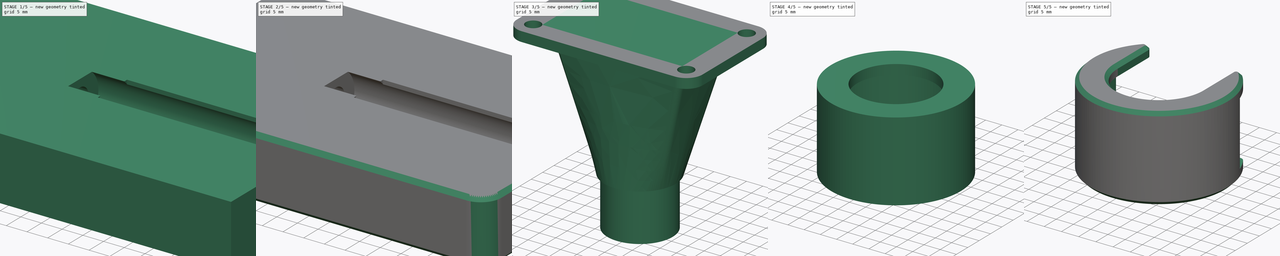
[diagram: build sequence overview — one tinted view per stage of 5, left to right]
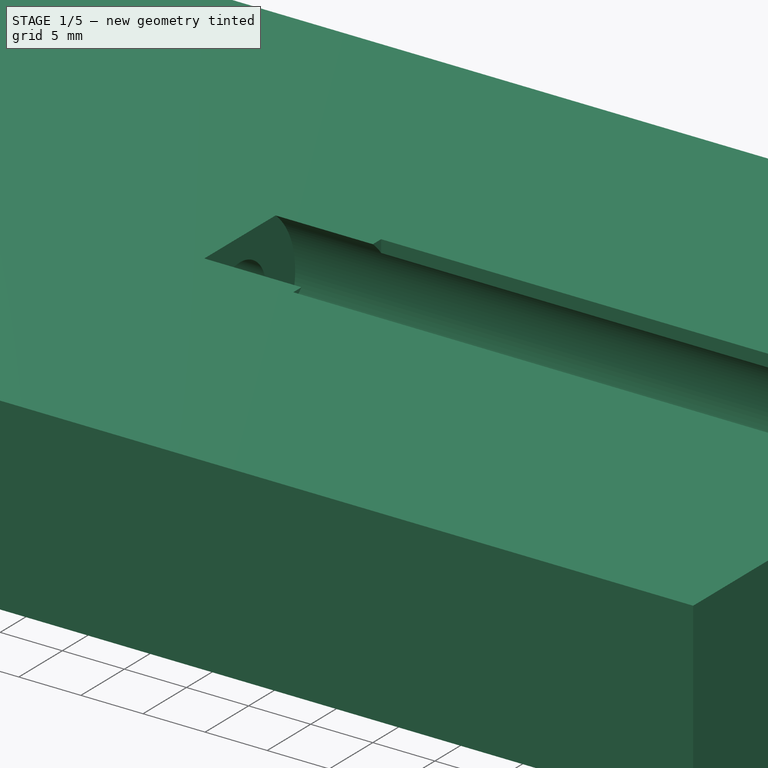
[diagram: stage 1 of 5 — iso view after this stage's code; geometry added in this stage tinted green]
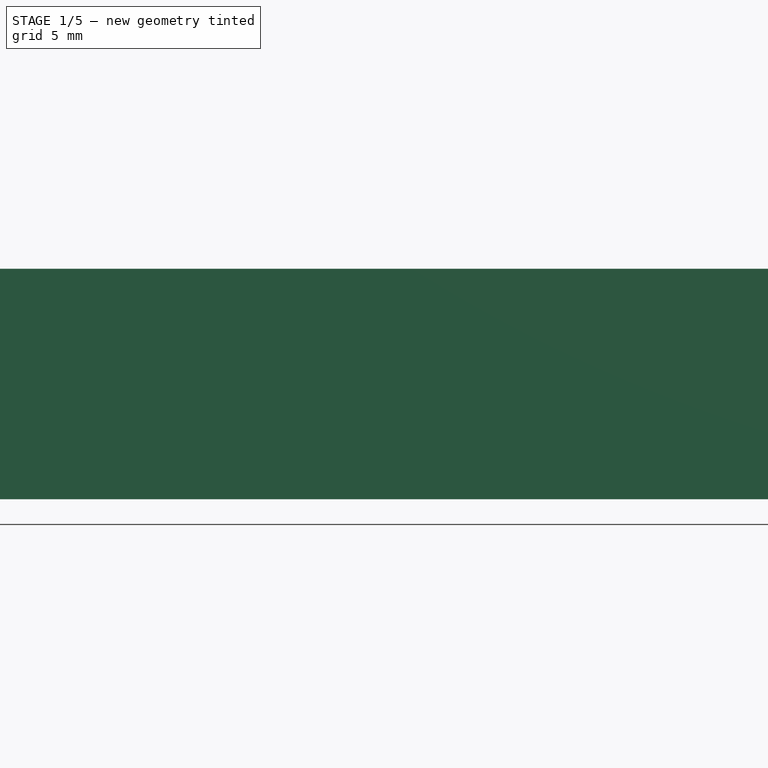
[diagram: stage 1 of 5 — front view after this stage's code; geometry added in this stage tinted green]
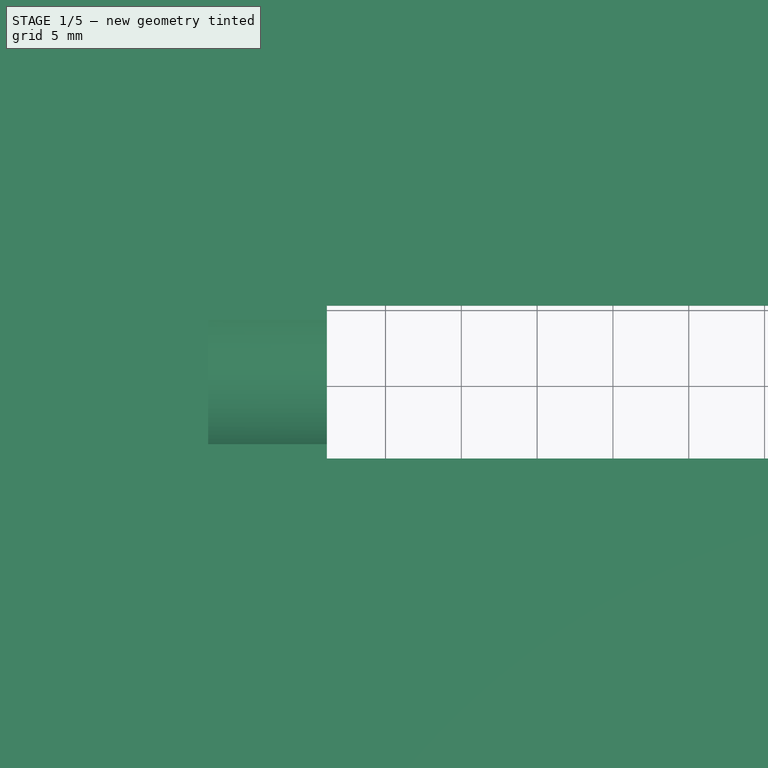
[diagram: stage 1 of 5 — top view after this stage's code; geometry added in this stage tinted green]
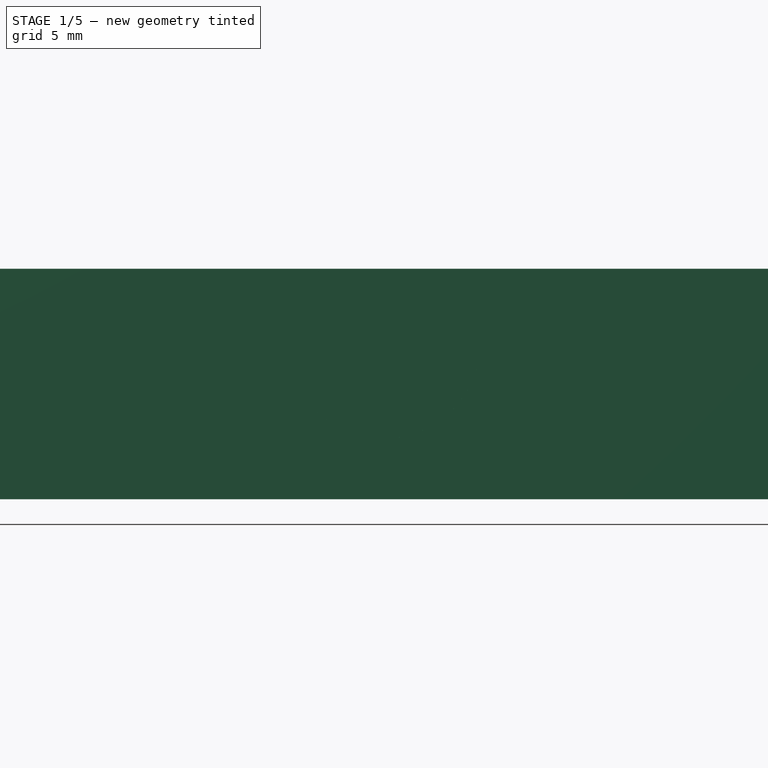
[diagram: stage 1 of 5 — right view after this stage's code; geometry added in this stage tinted green]
FCSTD DOCUMENT  (FreeCAD 1.1R20260108 (Git shallow))
Label: Tamis
License: Creative Commons Attribution-NonCommercial-ShareAlike 3.0
LicenseURL: https://creativecommons.org/licenses/by-nc-sa/3.0/
objects: Sketcher::SketchObject×15, App::Point×6, PartDesign::Body×5, PartDesign::Revolution×4, PartDesign::SubShapeBinder×4, PartDesign::Pocket×4, PartDesign::Chamfer×4, PartDesign::Plane×3, PartDesign::Line×3, PartDesign::Fillet×3, PartDesign::Pad×2, PartDesign::Groove×1, PartDesign::AdditiveLoft×1, App::Part×1
note: 102 computed .brp shape members not serialized (recipe doc carries the construction recipe); baked Part::Feature solids carry a one-line shape summary decoded from their .brp

FEATURE [Sketcher::SketchObject] Sketch
  ArcFitTolerance = 1e-06
  AttachmentSupport = -> [XZ_Plane001]
  ExternalTypes = [0]
  FullyConstrained = true
  MakeInternals = false
  MapMode = 5
  Placement = pos=(0,0,0) rot=(1,0,0;1.5708rad)
  expr: Constraints[34] = 1 in / 4
  expr: Constraints[35] = 1 in / 8
  expr: Constraints[47] = 11.1 / 2
  sketch-geometry (18):
    g0: LineSegment StartX=-96 StartY=0 StartZ=0 EndX=-96 EndY=3 EndZ=0
    g1: LineSegment StartX=-96 StartY=3 StartZ=0 EndX=-91.7 EndY=3 EndZ=0
    g2: LineSegment StartX=-91.7 StartY=3 StartZ=0 EndX=-91.7 EndY=6.35 EndZ=0
    g3: LineSegment StartX=-91.7 StartY=6.35 StartZ=0 EndX=-85.37 EndY=6.35 EndZ=0
    g4: LineSegment StartX=-83.87 StartY=3 StartZ=0 EndX=-83.87 EndY=6.35 EndZ=0
    g5: LineSegment StartX=-83.87 StartY=6.35 StartZ=0 EndX=-45.42 EndY=6.35 EndZ=0
    g6: LineSegment StartX=-45.42 StartY=6.35 StartZ=0 EndX=-45.42 EndY=3 EndZ=0
    g7: LineSegment StartX=-45.42 StartY=3 StartZ=0 EndX=-44.9 EndY=3 EndZ=0
    g8: LineSegment StartX=-44.9 StartY=3 StartZ=0 EndX=-44.9 EndY=6.35 EndZ=0
    g9: LineSegment StartX=-44.9 StartY=6.35 StartZ=0 EndX=-40.2 EndY=6.35 EndZ=0
    g10: LineSegment StartX=-40.2 StartY=6.35 StartZ=0 EndX=-40.2 EndY=5.55 EndZ=0
    g11: LineSegment StartX=-31.7 StartY=3.175 StartZ=0 EndX=0 EndY=3.175 EndZ=0
    g12: LineSegment StartX=0 StartY=3.175 StartZ=0 EndX=0 EndY=0 EndZ=0
    g13: LineSegment StartX=0 StartY=0 StartZ=0 EndX=-96 EndY=0 EndZ=0
    g14: LineSegment StartX=-85.37 StartY=6.35 StartZ=0 EndX=-85.37 EndY=3 EndZ=0
    g15: LineSegment StartX=-85.37 StartY=3 StartZ=0 EndX=-83.87 EndY=3 EndZ=0
    g16: LineSegment StartX=-40.2 StartY=5.55 StartZ=0 EndX=-31.7 EndY=5.55 EndZ=0
    g17: LineSegment StartX=-31.7 StartY=5.55 StartZ=0 EndX=-31.7 EndY=3.175 EndZ=0
  constraints (54):
    c: PointOnObject(g0,g-1)
    c: Vertical(g0)
    c: Coincident(g0,g1)
    c: Horizontal(g1)
    c: Coincident(g1,g2)
    c: Vertical(g2)
    c: Coincident(g2,g3)
    c: Vertical(g4)
    c: Coincident(g4,g5)
    c: Horizontal(g5)
    c: Coincident(g5,g6)
    c: Vertical(g6)
    c: Coincident(g6,g7)
    c: Coincident(g7,g8)
    c: Coincident(g8,g9)
    c: Coincident(g9,g10)
    c: Horizontal(g11)
    c: Coincident(g11,g12)
    c: PointOnObject(g12,g-1)
    c: Coincident(g12,g13)
    c: Coincident(g13,g0)
    c: Horizontal(g3)
    c: Horizontal(g7)
    c: Horizontal(g9)
    c: Vertical(g12)
    c: Vertical(g10)
    c: Vertical(g8)
    c: Coincident(g3,g14)
    c: Vertical(g14)
    c: Coincident(g14,g15)
    c: Coincident(g15,g4)
    c: Horizontal(g15)
    c: DistanceX(g5,g5) = 38.45
    c: Vertical(g-1,g12)
    c: Distance(g4,g13) = 6.35
    c: Distance(g11,g-1) = 3.175
    c: Horizontal(g5,g8)
    c: Horizontal(g4,g3)
    c: Distance(g9,g9) = 4.7
    c: Horizontal(g4,g6)
    c: DistanceY(g-1,g0) = 3
    c: DistanceX(g0,g-1) = 96
    c: Horizontal(g16)
    c: Coincident(g16,g17)
    c: Coincident(g11,g17)
    c: Coincident(g10,g16)
    c: Vertical(g17)
    c: DistanceY(g-1,g16) = 5.55
    c: DistanceX(g3,g3) = 6.33
    c: DistanceX(g1,g10) = 51.5
    c: Distance(g15,g15) = 1.5
    c: Distance(g1,g1) = 4.3
    c: Horizontal(g1,g14)
    c: DistanceX(g16,g16) = 8.5
FEATURE [PartDesign::Revolution] Revolution
  Angle = 360
  Angle2 = 60
  Axis = (1,0,0)
  Base = (0,0,0)
  FuseOrder = 0
  Placement = pos=(0,0,0) rot=(1,0,0;1.5708rad)
  Profile = -> Sketch
  ReferenceAxis = -> Sketch [H_Axis]
  Refine = true
  Suppressed = false
  Type = 0
FEATURE [PartDesign::Body] Body  label="Fraise"
  AllowCompound = false
  Group = -> [Sketch,Revolution]
  Origin = -> Origin001
  Tip = -> Revolution
FEATURE [PartDesign::SubShapeBinder] Binder
  BindCopyOnChange = 0
  BindMode = 0
  ClaimChildren = false
  Context = -> Part [Body001.Binder.]
  Fuse = false
  MakeFace = true
  OffsetFill = false
  OffsetIntersection = false
  OffsetJoinType = 0
  OffsetOpenResult = false
  PartialLoad = false
  Refine = true
  Relative = true
  Support = -> [Body[Revolution.]]
  _Version = 2
FEATURE [Sketcher::SketchObject] Sketch001
  ArcFitTolerance = 1e-06
  AttachmentSupport = -> [XZ_Plane002]
  ExternalGeometry = -> [Binder]
  ExternalTypes = [0]
  FullyConstrained = true
  MakeInternals = false
  MapMode = 5
  Placement = pos=(0,0,0) rot=(1,0,0;1.5708rad)
  sketch-geometry (4):
    g0: LineSegment StartX=-126 StartY=4.85 StartZ=0 EndX=-126 EndY=-10.35 EndZ=0
    g1: LineSegment StartX=-126 StartY=-10.35 StartZ=0 EndX=-34.2 EndY=-10.35 EndZ=0
    g2: LineSegment StartX=-34.2 StartY=-10.35 StartZ=0 EndX=-34.2 EndY=4.85 EndZ=0
    g3: LineSegment StartX=-126 StartY=4.85 StartZ=0 EndX=-34.2 EndY=4.85 EndZ=0
  constraints (13):
    c: Coincident(g0,g1)
    c: Coincident(g1,g2)
    c: Vertical(g0)
    c: Vertical(g2)
    c: Horizontal(g1)
    c: DistanceX(g0,g-3) = 30
    c: DistanceX(g-7,g2) = 6
    c: DistanceY(g0,g-6) = 1.5
    c: Distance(g-8,g1) = 4
    c: Coincident(g3,g0)
    c: Coincident(g3,g2)
    c: Horizontal(g3)
    c: Distance(g0,g0) = 15.2
FEATURE [PartDesign::Pad] Pad
  Direction = (0,-1,2e-16)
  Length = 60
  Length2 = 10
  Placement = pos=(0,0,0) rot=(1,0,0;1.5708rad)
  Profile = -> Sketch001
  ReferenceAxis = -> Sketch001 [N_Axis]
  Refine = true
  SideType = 2
  Suppressed = false
  Type = 0
  Type2 = 0
FEATURE [Sketcher::SketchObject] Sketch002
  ArcFitTolerance = 1e-06
  AttachmentSupport = -> [XZ_Plane002]
  ExternalGeometry = -> [Binder]
  ExternalTypes = [0]
  FullyConstrained = true
  MakeInternals = false
  MapMode = 5
  Placement = pos=(0,0,0) rot=(1,0,0;1.5708rad)
  sketch-geometry (6):
    g0: LineSegment StartX=-97 StartY=3 StartZ=0 EndX=-91.7 EndY=3 EndZ=0
    g1: LineSegment StartX=-91.7 StartY=3 StartZ=0 EndX=-91.7 EndY=6.35 EndZ=0
    g2: LineSegment StartX=-91.7 StartY=6.35 StartZ=0 EndX=0 EndY=6.35 EndZ=0
    g3: LineSegment StartX=0 StartY=6.35 StartZ=0 EndX=0 EndY=0 EndZ=0
    g4: LineSegment StartX=0 StartY=0 StartZ=0 EndX=-97 EndY=0 EndZ=0
    g5: LineSegment StartX=-97 StartY=3 StartZ=0 EndX=-97 EndY=0 EndZ=0
  constraints (16):
    c: PointOnObject(g0,g-4)
    c: Coincident(g0,g1)
    c: Coincident(g1,g-4)
    c: Coincident(g1,g2)
    c: Coincident(g3,g-1)
    c: Coincident(g3,g4)
    c: Horizontal(g0)
    c: Coincident(g3,g2)
    c: PointOnObject(g-5,g2)
    c: Vertical(g3)
    c: Coincident(g5,g0)
    c: PointOnObject(g5,g-1)
    c: Vertical(g5)
    c: Coincident(g4,g5)
    c: Distance(g0,g-3) = 1
    c: PointOnObject(g-3,g0)
FEATURE [PartDesign::Groove] Groove
  Angle = 360
  Angle2 = 60
  Axis = (1,0,0)
  Base = (0,0,0)
  BaseFeature = -> Pad
  Placement = pos=(0,0,0) rot=(1,0,0;1.5708rad)
  Profile = -> Sketch002
  ReferenceAxis = -> Sketch002 [H_Axis]
  Refine = true
  Reversed = true
  Suppressed = false
  Type = 0
FEATURE [PartDesign::Plane] DatumPlane  label="Cut Plane 1"
  AttachmentSupport = -> [Binder]
  Length = 70.9545
  MapMode = 11
  Placement = pos=(-83.87,0,0) rot=(0.57735,-0.57735,0.57735;4.18879rad)
  ResizeMode = 0
  Width = 60.9545
FEATURE [PartDesign::Plane] DatumPlane001  label="Cut Plane 2"
  AttachmentSupport = -> [Binder]
  Length = 70.9545
  MapMode = 11
  Placement = pos=(-45.42,0,0) rot=(0.57735,-0.57735,0.57735;4.18879rad)
  ResizeMode = 0
  Width = 60.9545
FEATURE [Sketcher::SketchObject] Sketch003
  ArcFitTolerance = 1e-06
  AttachmentSupport = -> [DatumPlane]
  ExternalGeometry = -> [Binder,Groove]
  ExternalTypes = [0]
  FullyConstrained = true
  MakeInternals = false
  MapMode = 5
  Placement = pos=(-83.87,0,0) rot=(0.57735,-0.57735,0.57735;4.18879rad)
  sketch-geometry (8):
    g0: ArcOfCircle CenterX=0 CenterY=0 CenterZ=0 NormalX=0 NormalY=0 NormalZ=1 AngleXU=0 Radius=6.35 StartAngle=2.8056 EndAngle=3.79299
    g1: ArcOfCircle CenterX=0 CenterY=0 CenterZ=0 NormalX=0 NormalY=0 NormalZ=1 AngleXU=0 Radius=6.35 StartAngle=5.63179 EndAngle=6.61918
    g2: LineSegment StartX=9 StartY=10.35 StartZ=0 EndX=-9 EndY=10.35 EndZ=0
    g3: LineSegment StartX=-9 StartY=10.35 StartZ=0 EndX=-5.99493 EndY=2.09364 EndZ=0
    g4: LineSegment StartX=-5.04975 StartY=-4.85 StartZ=0 EndX=5.04975 EndY=-4.85 EndZ=0
    g5: LineSegment StartX=5.99493 StartY=2.09364 StartZ=0 EndX=9 EndY=10.35 EndZ=0
    g6: LineSegment StartX=-5.04975 StartY=-3.85 StartZ=0 EndX=-5.04975 EndY=-4.85 EndZ=0
    g7: LineSegment StartX=5.04975 StartY=-3.85 StartZ=0 EndX=5.04975 EndY=-4.85 EndZ=0
  constraints (23):
    c: Coincident(g0,g-1)
    c: Coincident(g1,g0)
    c: PointOnObject(g2,g-5)
    c: Coincident(g2,g3)
    c: Coincident(g3,g0)
    c: Horizontal(g4)
    c: Coincident(g1,g5)
    c: Coincident(g2,g5)
    c: Symmetric(g2,g2,g-2)
    c: Angle(g5,g-2) = 0.349066
    c: Horizontal(g0,g1)
    c: DistanceX(g2,g2) = 18
    c: Vertical(g6)
    c: Vertical(g7)
    c: Distance(g6,g6) = 1
    c: Coincident(g0,g6)
    c: Coincident(g1,g7)
    c: Coincident(g4,g7)
    c: PointOnObject(g1,g-3)
    c: PointOnObject(g0,g-3)
    c: Coincident(g4,g6)
    c: PointOnObject(g4,g-4)
    c: Horizontal(g0,g1)
FEATURE [PartDesign::Pocket] Pocket
  BaseFeature = -> Groove
  Direction = (-1,0,0)
  Length = 0
  Length2 = 5
  Placement = pos=(0,0,0) rot=(1,0,0;1.5708rad)
  Profile = -> Sketch003
  ReferenceAxis = -> Sketch003 [N_Axis]
  Refine = true
  Reversed = true
  SideType = 0
  Suppressed = false
  Type = 3
  Type2 = 0
  UpToFace = -> DatumPlane001 [Plane]
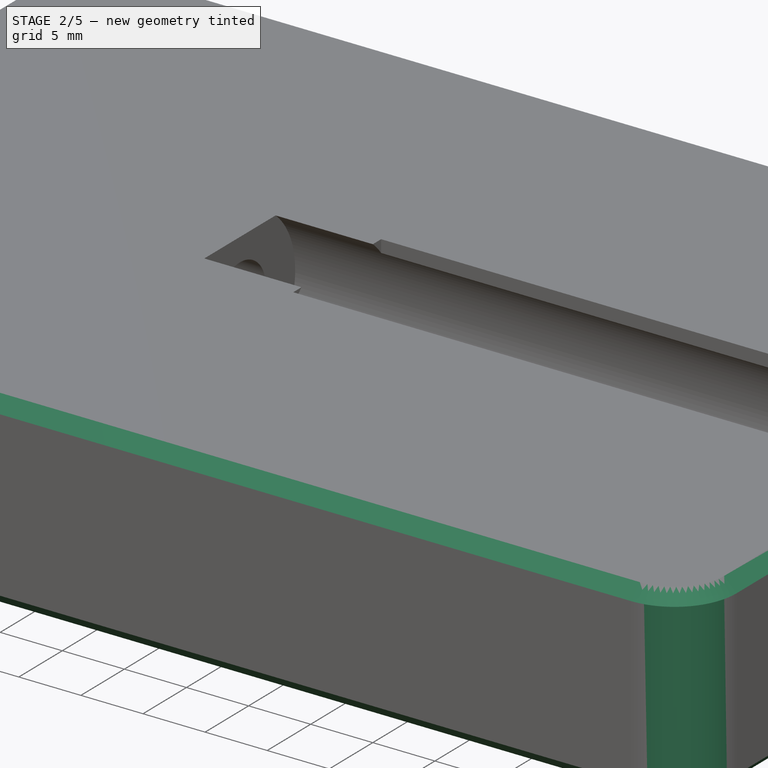
[diagram: stage 2 of 5 — iso view after this stage's code; geometry added in this stage tinted green]
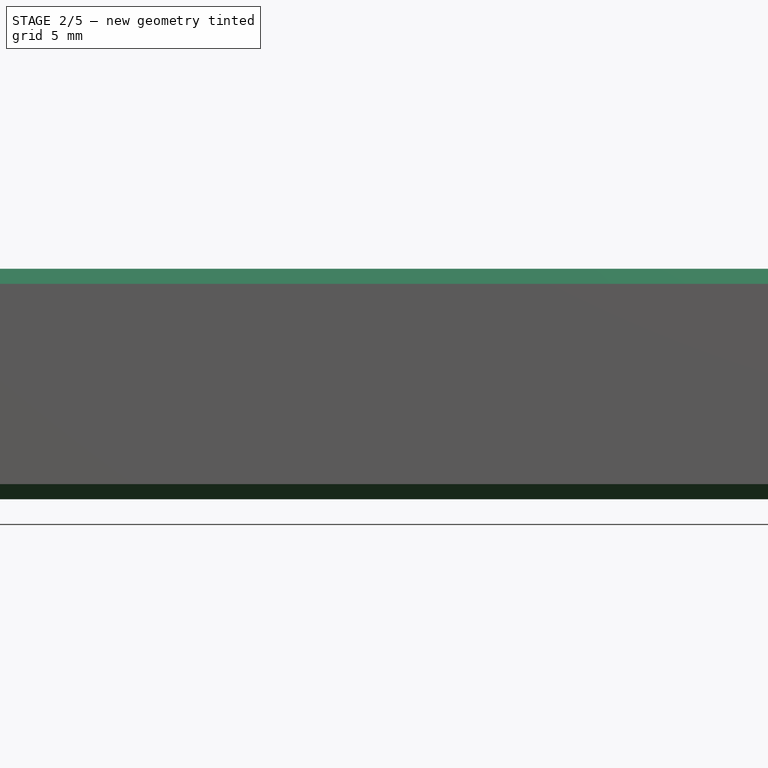
[diagram: stage 2 of 5 — front view after this stage's code; geometry added in this stage tinted green]
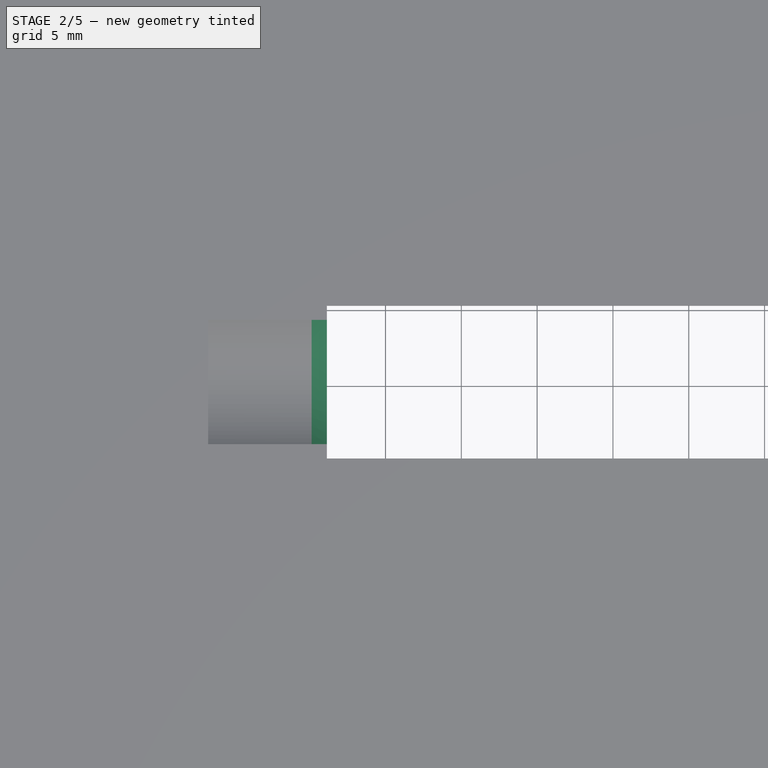
[diagram: stage 2 of 5 — top view after this stage's code; geometry added in this stage tinted green]
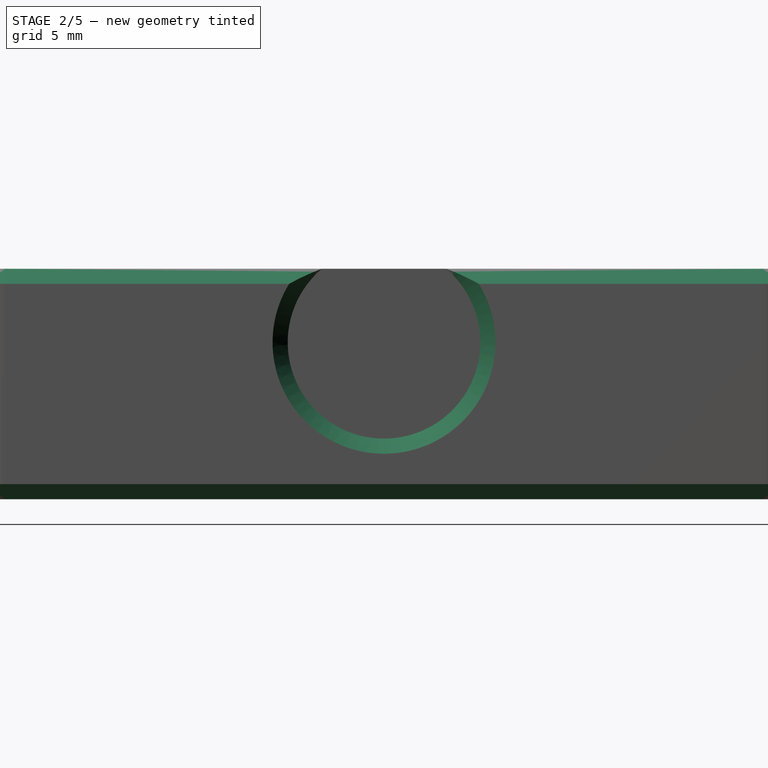
[diagram: stage 2 of 5 — right view after this stage's code; geometry added in this stage tinted green]
FEATURE [PartDesign::Chamfer] Chamfer
  Angle = 45
  Base = -> Pocket [Edge29,Edge49]
  BaseFeature = -> Pocket
  ChamferType = 0
  FlipDirection = false
  Placement = pos=(0,0,0) rot=(1,0,0;1.5708rad)
  Refine = true
  Size = 1
  Size2 = 1
  SupportTransform = false
  Suppressed = false
  UseAllEdges = false
FEATURE [PartDesign::Plane] DatumPlane002  label="Bottom Plan"
  AttachmentOffset = pos=(0,0,40) rot=(0,0,1;0rad)
  Length = 133.482
  MapMode = 5
  Placement = pos=(0,-2.3e-15,-50.35) rot=(1,0,0;3.14159rad)
  ResizeMode = 0
  Width = 65.3696
FEATURE [Sketcher::SketchObject] Sketch006
  ArcFitTolerance = 1e-06
  AttachmentSupport = -> [Chamfer]
  ExternalGeometry = -> [DatumPlane001,Pocket]
  ExternalTypes = [0]
  FullyConstrained = true
  MakeInternals = false
  MapMode = 5
  Placement = pos=(0,-2.3e-15,-10.35) rot=(1,0,0;3.14159rad)
  sketch-geometry (13):
    g0: Circle CenterX=-88.1126 CenterY=13.2426 CenterZ=0 NormalX=0 NormalY=0 NormalZ=1 AngleXU=0 Radius=2.3
    g1: LineSegment [constr] StartX=-88.1126 StartY=13.2426 StartZ=0 EndX=-88.1126 EndY=-13.2426 EndZ=0
    g2: LineSegment [constr] StartX=-88.1126 StartY=-13.2426 StartZ=0 EndX=-41.1774 EndY=-13.2426 EndZ=0
    g3: LineSegment [constr] StartX=-41.1774 StartY=-13.2426 StartZ=0 EndX=-41.1774 EndY=13.2426 EndZ=0
    g4: LineSegment [constr] StartX=-41.1774 StartY=13.2426 StartZ=0 EndX=-88.1126 EndY=13.2426 EndZ=0
    g5: LineSegment [constr] StartX=-88.1126 StartY=13.2426 StartZ=0 EndX=-83.87 EndY=9 EndZ=0
    g6: LineSegment [constr] StartX=-45.42 StartY=-9 StartZ=0 EndX=-41.1774 EndY=-13.2426 EndZ=0
    g7: Circle CenterX=-41.1774 CenterY=13.2426 CenterZ=0 NormalX=0 NormalY=0 NormalZ=1 AngleXU=0 Radius=2.3
    g8: Circle CenterX=-41.1774 CenterY=-13.2426 CenterZ=0 NormalX=0 NormalY=0 NormalZ=1 AngleXU=0 Radius=2.3
    g9: Circle CenterX=-88.1126 CenterY=-13.2426 CenterZ=0 NormalX=0 NormalY=0 NormalZ=1 AngleXU=0 Radius=2.3
    g10: LineSegment [constr] StartX=-45.42 StartY=9 StartZ=0 EndX=-45.42 EndY=13.2426 EndZ=0
    g11: LineSegment [constr] StartX=-45.42 StartY=9 StartZ=0 EndX=-41.1774 EndY=9 EndZ=0
    g12: LineSegment [constr] StartX=-88.1126 StartY=-13.2426 StartZ=0 EndX=-83.87 EndY=-9 EndZ=0
  constraints (32):
    c: Coincident(g1,g2)
    c: Coincident(g2,g3)
    c: Coincident(g3,g4)
    c: Coincident(g4,g1)
    c: Vertical(g1)
    c: Vertical(g3)
    c: Horizontal(g2)
    c: Horizontal(g4)
    c: Coincident(g1,g0)
    c: Coincident(g5,g0)
    c: Coincident(g6,g2)
    c: Equal(g6,g5)
    c: Diameter(g0) = 4.6
    c: Distance(g5,g5) = 6
    c: Coincident(g7,g3)
    c: Coincident(g8,g2)
    c: Coincident(g9,g1)
    c: Equal(g0,g9)
    c: Equal(g9,g8)
    c: Equal(g8,g7)
    c: PointOnObject(g10,g4)
    c: Vertical(g10)
    c: Coincident(g11,g10)
    c: PointOnObject(g11,g3)
    c: Horizontal(g11)
    c: Equal(g11,g10)
    c: Coincident(g12,g1)
    c: Equal(g12,g5)
    c: Coincident(g12,g-5)
    c: Coincident(g6,g-5)
    c: Coincident(g-4,g10)
    c: Coincident(g-4,g5)
FEATURE [PartDesign::Pocket] Pocket001
  BaseFeature = -> Chamfer
  Direction = (0,0,1)
  Length = 12
  Length2 = 5
  Offset = 2
  Placement = pos=(0,0,0) rot=(1,0,0;1.5708rad)
  Profile = -> Sketch006
  ReferenceAxis = -> Sketch006 [N_Axis]
  Refine = true
  SideType = 0
  Suppressed = false
  Type = 0
  Type2 = 0
FEATURE [PartDesign::Body] Body004  label="Clip"
  AllowCompound = false
  Group = -> [Binder004,Sketch013,DatumLine002,Revolution003,Sketch014,Pocket003,Fillet,Fillet001,Chamfer001]
  Origin = -> Origin005
  Tip = -> Chamfer001
FEATURE [PartDesign::Fillet] Fillet002
  Base = -> Pocket001 [Edge20,Edge22,Edge24,Edge40]
  BaseFeature = -> Pocket001
  Placement = pos=(0,0,0) rot=(1,0,0;1.5708rad)
  Radius = 5
  Refine = true
  SupportTransform = false
  Suppressed = false
  UseAllEdges = false
FEATURE [PartDesign::Chamfer] Chamfer002
  Angle = 45
  Base = -> Fillet002 [Edge4,Edge30]
  BaseFeature = -> Fillet002
  ChamferType = 0
  FlipDirection = false
  Placement = pos=(0,0,0) rot=(1,0,0;1.5708rad)
  Refine = true
  Size = 1
  Size2 = 1
  SupportTransform = false
  Suppressed = false
  UseAllEdges = false
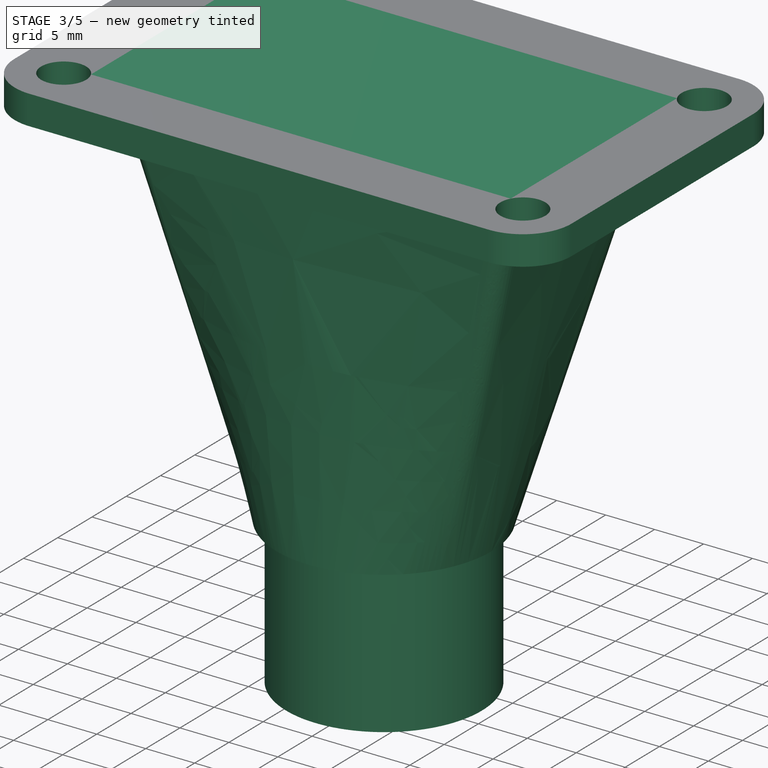
[diagram: stage 3 of 5 — iso view after this stage's code; geometry added in this stage tinted green]
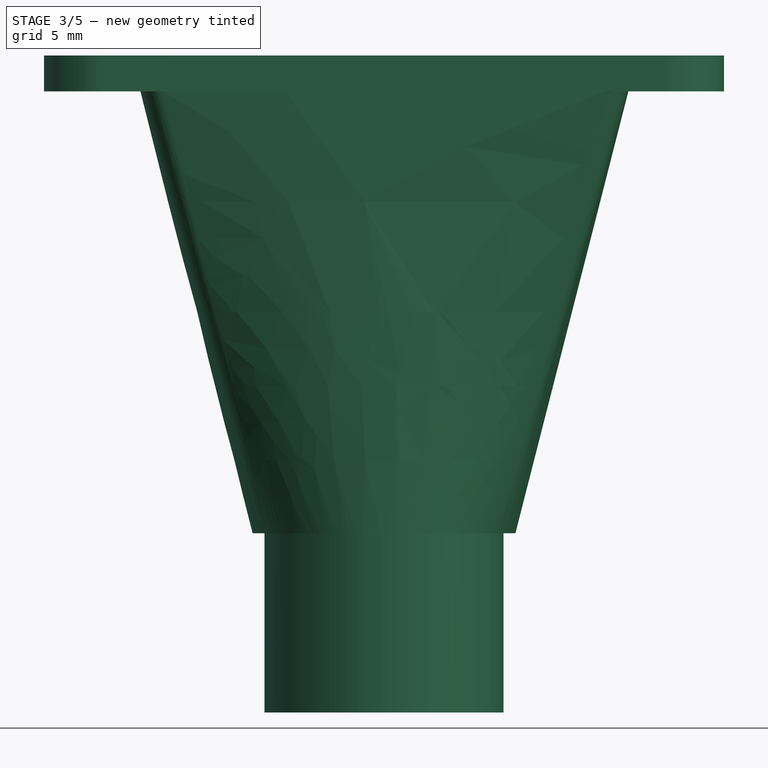
[diagram: stage 3 of 5 — front view after this stage's code; geometry added in this stage tinted green]
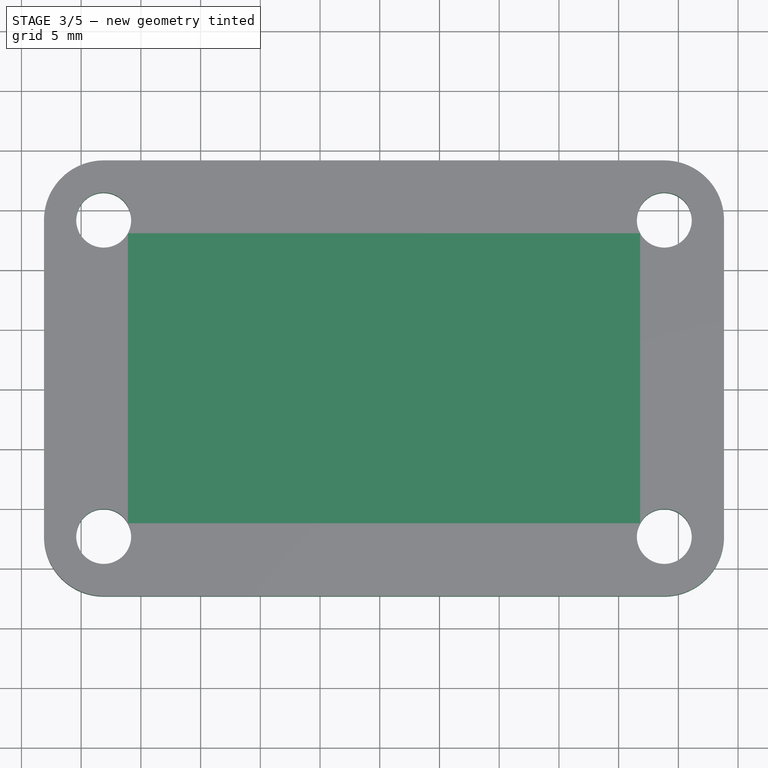
[diagram: stage 3 of 5 — top view after this stage's code; geometry added in this stage tinted green]
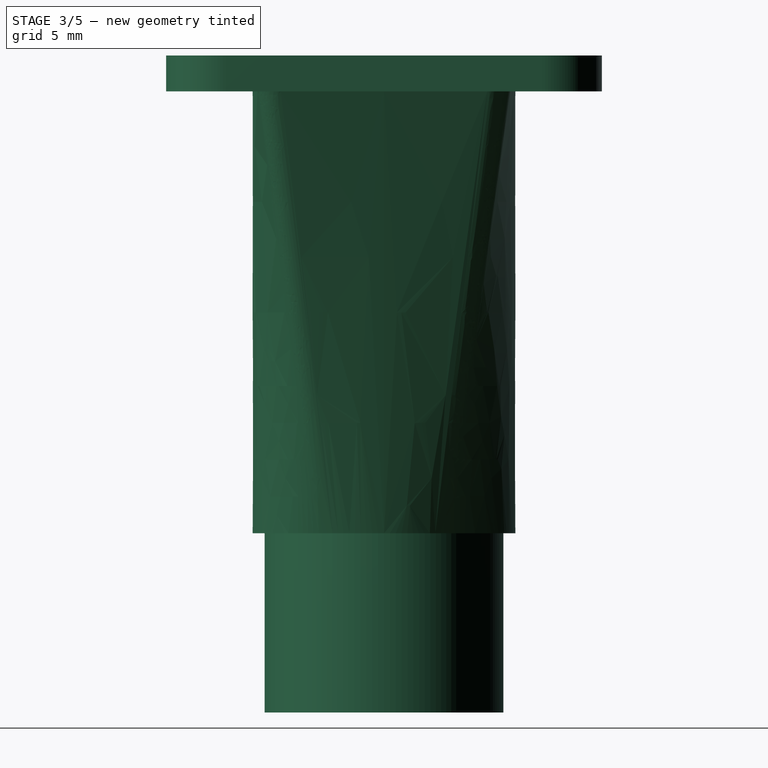
[diagram: stage 3 of 5 — right view after this stage's code; geometry added in this stage tinted green]
FEATURE [Sketcher::SketchObject] Sketch007
  ArcFitTolerance = 1e-06
  AttachmentSupport = -> [Pocket001]
  ExternalTypes = [0]
  FullyConstrained = true
  MakeInternals = false
  MapMode = 5
  Placement = pos=(0,1.1e-15,4.85) rot=(0,0,1;3.14159rad)
  sketch-geometry (28):
    g0: LineSegment StartX=27.7574 StartY=18.2079 StartZ=0 EndX=23.4574 EndY=15.7252 EndZ=0
    g1: LineSegment StartX=23.4574 StartY=15.7252 StartZ=0 EndX=23.4574 EndY=10.76 EndZ=0
    g2: LineSegment StartX=23.4574 StartY=10.76 StartZ=0 EndX=27.7574 EndY=8.27743 EndZ=0
    g3: LineSegment StartX=27.7574 StartY=8.27743 StartZ=0 EndX=32.0574 EndY=10.76 EndZ=0
    g4: LineSegment StartX=32.0574 StartY=10.76 StartZ=0 EndX=32.0574 EndY=15.7252 EndZ=0
    g5: LineSegment StartX=32.0574 StartY=15.7252 StartZ=0 EndX=27.7574 EndY=18.2079 EndZ=0
    g6: Circle [constr] CenterX=27.7574 CenterY=13.2426 CenterZ=0 NormalX=0 NormalY=0 NormalZ=1 AngleXU=0 Radius=4.96521
    g7: LineSegment StartX=23.4574 StartY=-10.76 StartZ=0 EndX=23.4574 EndY=-15.7252 EndZ=0
    g8: LineSegment StartX=23.4574 StartY=-15.7252 StartZ=0 EndX=27.7574 EndY=-18.2079 EndZ=0
    g9: LineSegment StartX=27.7574 StartY=-18.2079 StartZ=0 EndX=32.0574 EndY=-15.7252 EndZ=0
    g10: LineSegment StartX=32.0574 StartY=-15.7252 StartZ=0 EndX=32.0574 EndY=-10.76 EndZ=0
    g11: LineSegment StartX=32.0574 StartY=-10.76 StartZ=0 EndX=27.7574 EndY=-8.27743 EndZ=0
    g12: LineSegment StartX=27.7574 StartY=-8.27743 StartZ=0 EndX=23.4574 EndY=-10.76 EndZ=0
    g13: Circle [constr] CenterX=27.7574 CenterY=-13.2426 CenterZ=0 NormalX=0 NormalY=0 NormalZ=1 AngleXU=0 Radius=4.96521
    g14: LineSegment StartX=81.9426 StartY=15.7252 StartZ=0 EndX=81.9426 EndY=10.76 EndZ=0
    g15: LineSegment StartX=81.9426 StartY=10.76 StartZ=0 EndX=86.2426 EndY=8.27743 EndZ=0
    g16: LineSegment StartX=86.2426 StartY=8.27743 StartZ=0 EndX=90.5426 EndY=10.76 EndZ=0
    g17: LineSegment StartX=90.5426 StartY=10.76 StartZ=0 EndX=90.5426 EndY=15.7252 EndZ=0
    g18: LineSegment StartX=90.5426 StartY=15.7252 StartZ=0 EndX=86.2426 EndY=18.2079 EndZ=0
    g19: LineSegment StartX=86.2426 StartY=18.2079 StartZ=0 EndX=81.9426 EndY=15.7252 EndZ=0
    g20: Circle [constr] CenterX=86.2426 CenterY=13.2426 CenterZ=0 NormalX=0 NormalY=0 NormalZ=1 AngleXU=0 Radius=4.96521
    g21: LineSegment StartX=81.9426 StartY=-10.76 StartZ=0 EndX=81.9426 EndY=-15.7252 EndZ=0
    g22: LineSegment StartX=81.9426 StartY=-15.7252 StartZ=0 EndX=86.2426 EndY=-18.2079 EndZ=0
    g23: LineSegment StartX=86.2426 StartY=-18.2079 StartZ=0 EndX=90.5426 EndY=-15.7252 EndZ=0
    g24: LineSegment StartX=90.5426 StartY=-15.7252 StartZ=0 EndX=90.5426 EndY=-10.76 EndZ=0
    g25: LineSegment StartX=90.5426 StartY=-10.76 StartZ=0 EndX=86.2426 EndY=-8.27743 EndZ=0
    g26: LineSegment StartX=86.2426 StartY=-8.27743 StartZ=0 EndX=81.9426 EndY=-10.76 EndZ=0
    g27: Circle [constr] CenterX=86.2426 CenterY=-13.2426 CenterZ=0 NormalX=0 NormalY=0 NormalZ=1 AngleXU=0 Radius=4.96521
  constraints (64):
    c: Coincident(g0,g1)
    c: Coincident(g1,g2)
    c: Coincident(g2,g3)
    c: Coincident(g3,g4)
    c: Coincident(g4,g5)
    c: Coincident(g5,g0)
    c: Equal(g0, g1-g5) x5
    c: PointOnObject(g0,g6)
    c: PointOnObject(g1,g6)
    c: PointOnObject(g2,g6)
    c: PointOnObject(g3,g6)
    c: PointOnObject(g4,g6)
    c: PointOnObject(g5,g6)
    c: Coincident(g6,g-3)
    c: Coincident(g7,g8)
    c: Coincident(g8,g9)
    c: Coincident(g9,g10)
    c: Coincident(g10,g11)
    c: Coincident(g11,g12)
    c: Coincident(g12,g7)
    c: Equal(g7, g8-g12) x5
    c: PointOnObject(g7,g13)
    c: PointOnObject(g8,g13)
    c: PointOnObject(g9,g13)
    c: PointOnObject(g10,g13)
    c: PointOnObject(g11,g13)
    c: PointOnObject(g12,g13)
    c: Coincident(g13,g-5)
    c: Coincident(g14,g15)
    c: Coincident(g15,g16)
    c: Coincident(g16,g17)
    c: Coincident(g17,g18)
    c: Coincident(g18,g19)
    c: Coincident(g19,g14)
    c: Equal(g14, g15-g19) x5
    c: PointOnObject(g14,g20)
    c: PointOnObject(g15,g20)
    c: PointOnObject(g16,g20)
    c: PointOnObject(g17,g20)
    c: PointOnObject(g18,g20)
    c: PointOnObject(g19,g20)
    c: Coincident(g20,g-4)
    c: Coincident(g21,g22)
    c: Coincident(g22,g23)
    c: Coincident(g23,g24)
    c: Coincident(g24,g25)
    c: Coincident(g25,g26)
    c: Coincident(g26,g21)
    c: Equal(g21, g22-g26) x5
    c: PointOnObject(g21,g27)
    c: PointOnObject(g22,g27)
    c: PointOnObject(g23,g27)
    c: PointOnObject(g24,g27)
    c: PointOnObject(g25,g27)
    c: PointOnObject(g26,g27)
    c: Coincident(g27,g-6)
    c: Equal(g13,g6)
    c: Equal(g6,g20)
    c: Equal(g20,g27)
    c: Vertical(g1)
    c: Vertical(g7)
    c: Vertical(g21)
    c: Vertical(g14)
    c: Distance(g7,g10) = 8.6
FEATURE [PartDesign::SubShapeBinder] Binder002  label="Top Plan"
  BindCopyOnChange = 0
  BindMode = 0
  ClaimChildren = false
  Context = -> Part [Body002.Binder002.]
  Fuse = false
  MakeFace = true
  OffsetFill = false
  OffsetIntersection = false
  OffsetJoinType = 0
  OffsetOpenResult = false
  PartialLoad = false
  Refine = true
  Relative = true
  Support = -> [Body001[Pocket001.Face15]]
  _Version = 2
FEATURE [Sketcher::SketchObject] Sketch004
  ArcFitTolerance = 1e-06
  AttachmentSupport = -> [DatumPlane002]
  ExternalGeometry = -> [Binder002]
  ExternalTypes = [0]
  FullyConstrained = true
  MakeInternals = false
  MapMode = 5
  Placement = pos=(0,-2.3e-15,-50.35) rot=(1,0,0;3.14159rad)
  sketch-geometry (2):
    g0: Circle CenterX=-64.645 CenterY=-1e-15 CenterZ=0 NormalX=0 NormalY=0 NormalZ=1 AngleXU=0 Radius=8
    g1: Circle CenterX=-64.645 CenterY=-1e-15 CenterZ=0 NormalX=0 NormalY=0 NormalZ=1 AngleXU=0 Radius=11
  constraints (4):
    c: Diameter(g0) = 16
    c: Symmetric(g-3,g-4,g0)
    c: Diameter(g1) = 22
    c: Coincident(g1,g0)
FEATURE [Sketcher::SketchObject] Sketch005
  ArcFitTolerance = 1e-06
  ExternalGeometry = -> [Binder002]
  ExternalTypes = [0]
  FullyConstrained = true
  MakeInternals = false
  MapMode = 5
  Placement = pos=(0,-2.3e-15,-10.35) rot=(1,0,0;3.14159rad)
  sketch-geometry (12):
    g0: LineSegment StartX=-83.87 StartY=9 StartZ=0 EndX=-45.42 EndY=9 EndZ=0
    g1: LineSegment StartX=-45.42 StartY=-9 StartZ=0 EndX=-83.87 EndY=-9 EndZ=0
    g2: LineSegment StartX=-83.87 StartY=-9 StartZ=0 EndX=-83.87 EndY=9 EndZ=0
    g3: LineSegment StartX=-45.42 StartY=9 StartZ=0 EndX=-45.42 EndY=-9 EndZ=0
    g4: LineSegment StartX=-43.42 StartY=9 StartZ=0 EndX=-43.42 EndY=-9 EndZ=0
    g5: ArcOfCircle CenterX=-45.42 CenterY=-9 CenterZ=0 NormalX=0 NormalY=0 NormalZ=1 AngleXU=-3.14159 Radius=2 StartAngle=1.5708 EndAngle=3.14159
    g6: LineSegment StartX=-45.42 StartY=-11 StartZ=0 EndX=-83.87 EndY=-11 EndZ=0
    g7: ArcOfCircle CenterX=-83.87 CenterY=-9 CenterZ=0 NormalX=0 NormalY=0 NormalZ=1 AngleXU=1.5708 Radius=2 StartAngle=1.5708 EndAngle=3.14159
    g8: LineSegment StartX=-85.87 StartY=-9 StartZ=0 EndX=-85.87 EndY=9 EndZ=0
    g9: ArcOfCircle CenterX=-83.87 CenterY=9 CenterZ=0 NormalX=0 NormalY=0 NormalZ=1 AngleXU=0 Radius=2 StartAngle=1.5708 EndAngle=3.14159
    g10: LineSegment StartX=-83.87 StartY=11 StartZ=0 EndX=-45.42 EndY=11 EndZ=0
    g11: ArcOfCircle CenterX=-45.42 CenterY=9 CenterZ=0 NormalX=0 NormalY=0 NormalZ=1 AngleXU=-1.5708 Radius=2 StartAngle=1.5708 EndAngle=3.14159
  constraints (24):
    c: Coincident(g1,g2)
    c: Coincident(g2,g0)
    c: Coincident(g3,g0)
    c: Coincident(g3,g1)
    c: Coincident(g-4,g1)
    c: Coincident(g-3,g0)
    c: Tangent(g4,g5) = 1.5708
    c: Tangent(g4,g11) = 1.5708
    c: Tangent(g5,g6) = 1.5708
    c: Tangent(g6,g7) = 1.5708
    c: Tangent(g7,g8) = 1.5708
    c: Tangent(g8,g9) = 1.5708
    c: Tangent(g9,g10) = 1.5708
    c: Tangent(g10,g11) = 1.5708
    c: Coincident(g9,g0)
    c: Coincident(g1,g7)
    c: Coincident(g1,g-3)
    c: Coincident(g1,g5)
    c: Coincident(g0,g11)
    c: Coincident(g0,g-4)
    c: Equal(g7,g9)
    c: Equal(g9,g11)
    c: Equal(g11,g5)
    c: Radius(g5) = 2
FEATURE [Sketcher::SketchObject] Sketch008
  ArcFitTolerance = 1e-06
  AttachmentSupport = -> [Binder002]
  ExternalGeometry = -> [Binder002]
  ExternalTypes = [0]
  FullyConstrained = true
  MakeInternals = false
  MapMode = 5
  Placement = pos=(0,-2.3e-15,-10.35) rot=(1,0,0;3.14159rad)
  sketch-geometry (12):
    g0: LineSegment StartX=-93.1126 StartY=13.2426 StartZ=0 EndX=-93.1126 EndY=-13.2426 EndZ=0
    g1: LineSegment StartX=-88.1126 StartY=-18.2426 StartZ=0 EndX=-41.1774 EndY=-18.2426 EndZ=0
    g2: LineSegment StartX=-36.1774 StartY=-13.2426 StartZ=0 EndX=-36.1774 EndY=13.2426 EndZ=0
    g3: LineSegment StartX=-41.1774 StartY=18.2426 StartZ=0 EndX=-88.1126 EndY=18.2426 EndZ=0
    g4: ArcOfCircle CenterX=-88.1126 CenterY=13.2426 CenterZ=0 NormalX=0 NormalY=0 NormalZ=1 AngleXU=0 Radius=5 StartAngle=1.5708 EndAngle=3.14159
    g5: ArcOfCircle CenterX=-88.1126 CenterY=-13.2426 CenterZ=0 NormalX=0 NormalY=0 NormalZ=1 AngleXU=0 Radius=5 StartAngle=3.14159 EndAngle=4.71239
    g6: ArcOfCircle CenterX=-41.1774 CenterY=-13.2426 CenterZ=0 NormalX=0 NormalY=0 NormalZ=1 AngleXU=0 Radius=5 StartAngle=4.71239 EndAngle=6.28319
    g7: ArcOfCircle CenterX=-41.1774 CenterY=13.2426 CenterZ=0 NormalX=0 NormalY=0 NormalZ=1 AngleXU=0 Radius=5 StartAngle=0 EndAngle=1.5708
    g8: Circle CenterX=-88.1126 CenterY=13.2426 CenterZ=0 NormalX=0 NormalY=0 NormalZ=1 AngleXU=0 Radius=2.3
    g9: Circle CenterX=-41.1774 CenterY=13.2426 CenterZ=0 NormalX=0 NormalY=0 NormalZ=1 AngleXU=0 Radius=2.3
    g10: Circle CenterX=-41.1774 CenterY=-13.2426 CenterZ=0 NormalX=0 NormalY=0 NormalZ=1 AngleXU=0 Radius=2.3
    g11: Circle CenterX=-88.1126 CenterY=-13.2426 CenterZ=0 NormalX=0 NormalY=0 NormalZ=1 AngleXU=0 Radius=2.3
  constraints (26):
    c: Tangent(g0,g4) = -1.5708
    c: Tangent(g0,g5) = -1.5708
    c: Tangent(g1,g5) = -1.5708
    c: Tangent(g1,g6) = -1.5708
    c: Tangent(g2,g6) = -1.5708
    c: Tangent(g2,g7) = -1.5708
    c: Tangent(g3,g7) = -1.5708
    c: Tangent(g3,g4) = -1.5708
    c: Vertical(g0)
    c: Vertical(g2)
    c: Horizontal(g1)
    c: Horizontal(g3)
    c: Equal(g4,g5)
    c: Equal(g5,g6)
    c: Equal(g6,g7)
    c: Coincident(g4,g-3)
    c: Coincident(g6,g-5)
    c: Coincident(g8,g4)
    c: Coincident(g9,g7)
    c: Coincident(g10,g6)
    c: Coincident(g11,g5)
    c: Equal(g8,g11)
    c: Equal(g11,g10)
    c: Equal(g10,g9)
    c: Equal(g9,g-3)
    c: Radius(g7) = 5
FEATURE [Sketcher::SketchObject] Sketch009
  ArcFitTolerance = 1e-06
  AttachmentSupport = -> [DatumPlane002]
  ExternalTypes = [0]
  FullyConstrained = false
  MakeInternals = false
  MapMode = 5
  Placement = pos=(0,-2.3e-15,-50.35) rot=(1,0,0;3.14159rad)
  sketch-geometry (2):
    g0: Circle CenterX=-64.1396 CenterY=0 CenterZ=0 NormalX=0 NormalY=0 NormalZ=1 AngleXU=0 Radius=9.39281
    g1: Circle CenterX=-64.1396 CenterY=0 CenterZ=0 NormalX=0 NormalY=0 NormalZ=1 AngleXU=0 Radius=14.0382
  constraints (2):
    c: PointOnObject(g0,g-1)
    c: Coincident(g1,g0)
FEATURE [Sketcher::SketchObject] Sketch010
  ArcFitTolerance = 1e-06
  AttachmentOffset = pos=(0,0,-57) rot=(0,0,1;0rad)
  AttachmentSupport = -> [XY_Plane003]
  ExternalTypes = [0]
  FullyConstrained = false
  MakeInternals = false
  MapMode = 5
  Placement = pos=(0,0,-57) rot=(0,0,1;0rad)
  sketch-geometry (2):
    g0: Circle CenterX=-63.2289 CenterY=0 CenterZ=0 NormalX=0 NormalY=0 NormalZ=1 AngleXU=0 Radius=23.0402
    g1: Circle CenterX=-63.2289 CenterY=0 CenterZ=0 NormalX=0 NormalY=0 NormalZ=1 AngleXU=0 Radius=17.7682
  constraints (2):
    c: PointOnObject(g0,g-1)
    c: Coincident(g1,g0)
FEATURE [PartDesign::Line] DatumLine001  label="Bottle Axis"
  AttacherType = Attacher::AttachEngineLine
  AttachmentSupport = -> [Binder002]
  Length = 20
  MapMode = 42
  Placement = pos=(-64.645,-6e-16,0) rot=(0,0,1;0rad)
  ResizeMode = 0
FEATURE [Sketcher::SketchObject] Sketch011
  ArcFitTolerance = 1e-06
  AttachmentSupport = -> [XZ_Plane003]
  ExternalGeometry = -> [DatumPlane002,DatumLine001]
  ExternalTypes = [0]
  FullyConstrained = true
  MakeInternals = false
  MapMode = 5
  Placement = pos=(0,0,0) rot=(1,0,0;1.5708rad)
  sketch-geometry (4):
    g0: LineSegment StartX=-72.645 StartY=-50.35 StartZ=0 EndX=-72.645 EndY=-65.35 EndZ=0
    g1: LineSegment StartX=-72.645 StartY=-65.35 StartZ=0 EndX=-74.645 EndY=-65.35 EndZ=0
    g2: LineSegment StartX=-74.645 StartY=-65.35 StartZ=0 EndX=-74.645 EndY=-50.35 EndZ=0
    g3: LineSegment StartX=-74.645 StartY=-50.35 StartZ=0 EndX=-72.645 EndY=-50.35 EndZ=0
  constraints (12):
    c: Vertical(g0)
    c: Coincident(g0,g1)
    c: Coincident(g1,g2)
    c: Vertical(g2)
    c: Horizontal(g3)
    c: Horizontal(g1)
    c: Distance(g0,g0) = 15
    c: Distance(g1,g1) = 2
    c: Distance(g1,g-4) = 10
    c: PointOnObject(g3,g-3)
    c: Coincident(g0,g3)
    c: Coincident(g3,g2)
FEATURE [PartDesign::Revolution] Revolution001
  Angle = 360
  Angle2 = 60
  Axis = (0,0,1)
  Base = (-64.645,-6e-16,0)
  FuseOrder = 0
  Placement = pos=(0,0,0) rot=(1,0,0;1.5708rad)
  Profile = -> Sketch011
  ReferenceAxis = -> DatumLine001
  Refine = true
  Suppressed = false
  Type = 0
FEATURE [PartDesign::AdditiveLoft] AdditiveLoft
  BaseFeature = -> Revolution001
  Closed = false
  Placement = pos=(0,0,0) rot=(1,0,0;1.5708rad)
  Profile = -> Sketch005
  Refine = true
  Ruled = false
  Sections = -> [Sketch004]
  Suppressed = false
FEATURE [PartDesign::Pad] Pad001
  BaseFeature = -> AdditiveLoft
  Direction = (0,0,-1)
  Length = 3
  Length2 = 10
  Placement = pos=(0,0,0) rot=(1,0,0;1.5708rad)
  Profile = -> Sketch008
  ReferenceAxis = -> Sketch008 [N_Axis]
  Refine = true
  SideType = 0
  Suppressed = false
  Type = 0
  Type2 = 0
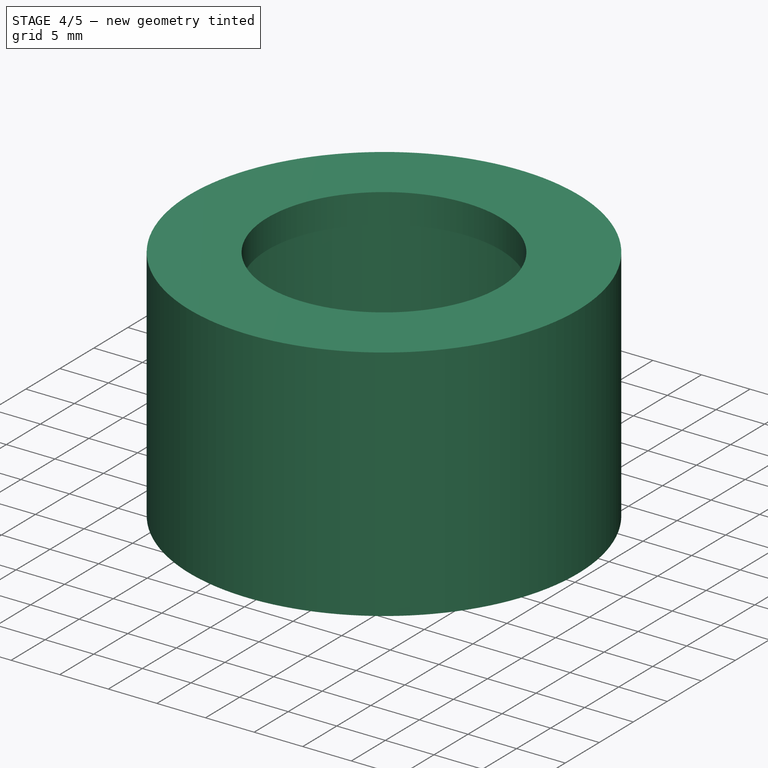
[diagram: stage 4 of 5 — iso view after this stage's code; geometry added in this stage tinted green]
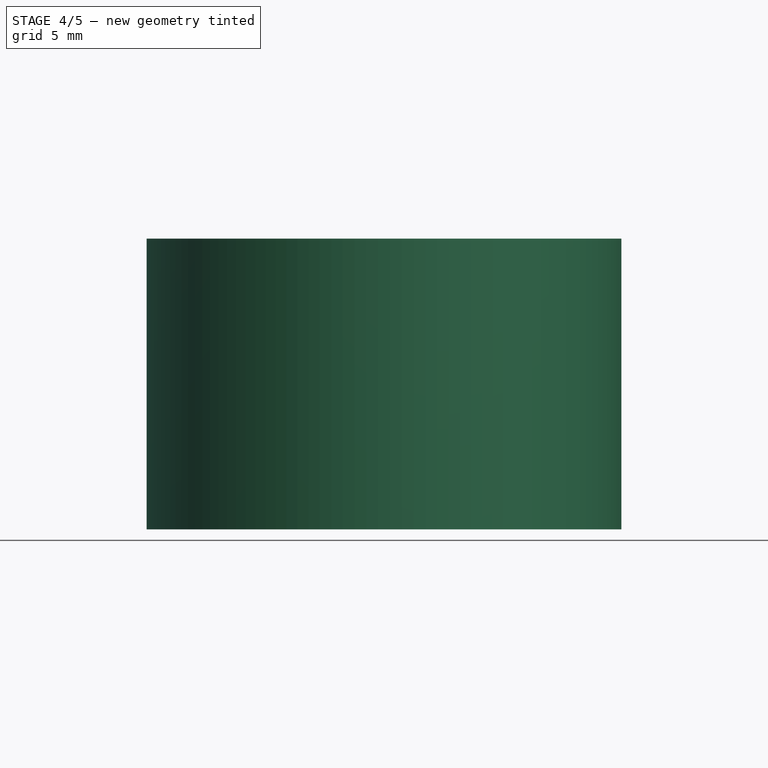
[diagram: stage 4 of 5 — front view after this stage's code; geometry added in this stage tinted green]
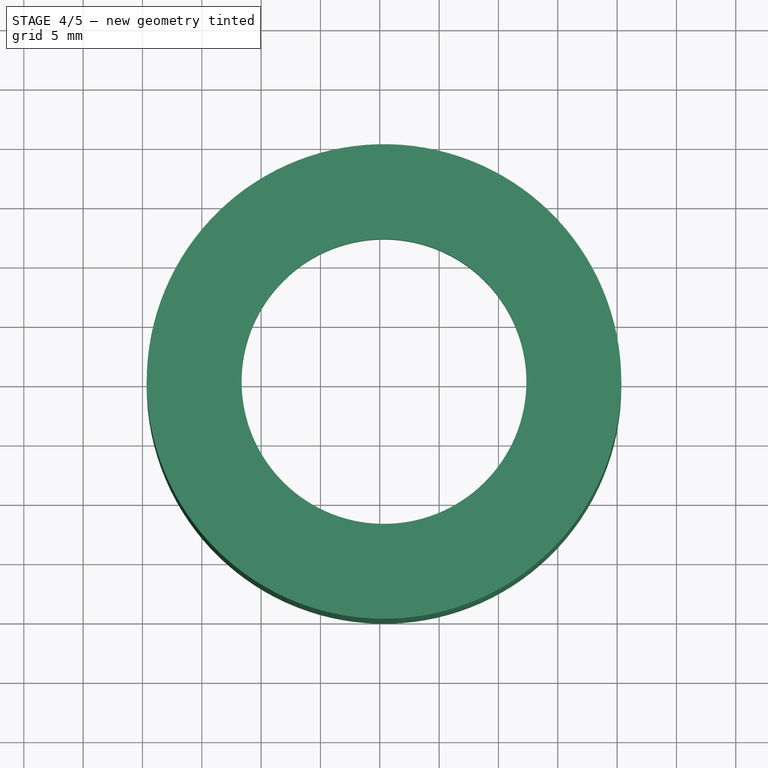
[diagram: stage 4 of 5 — top view after this stage's code; geometry added in this stage tinted green]
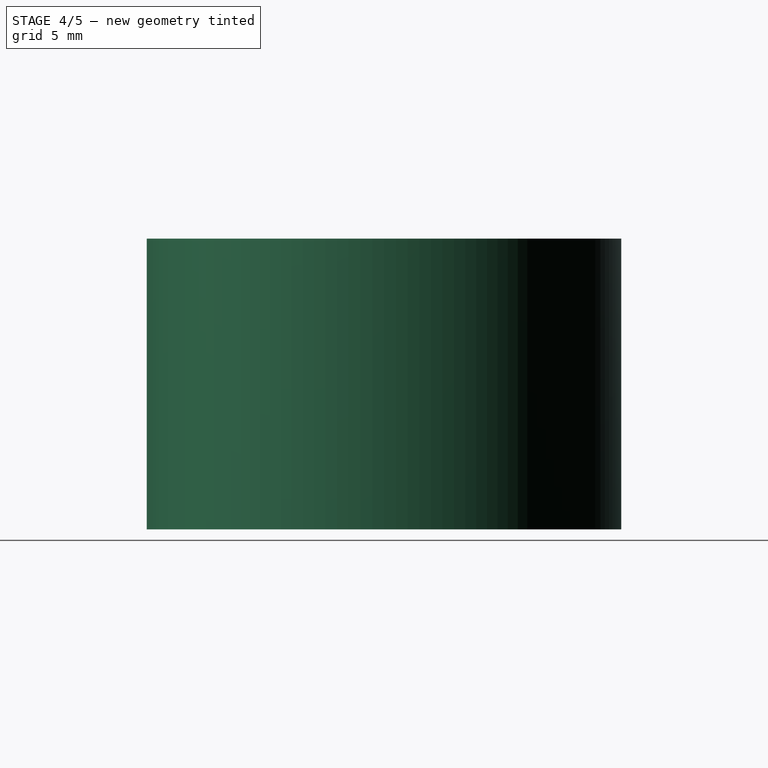
[diagram: stage 4 of 5 — right view after this stage's code; geometry added in this stage tinted green]
FEATURE [PartDesign::Pocket] Pocket002
  BaseFeature = -> Pad001
  Direction = (0,0,1)
  Length = 5
  Length2 = 5
  Placement = pos=(0,0,0) rot=(1,0,0;1.5708rad)
  Profile = -> Pad001 [Face9]
  Refine = true
  SideType = 0
  Suppressed = false
  Type = 0
  Type2 = 0
FEATURE [PartDesign::SubShapeBinder] Binder003
  BindCopyOnChange = 0
  BindMode = 0
  ClaimChildren = false
  Context = -> Part [Body003.Binder003.]
  Fuse = false
  MakeFace = true
  OffsetFill = false
  OffsetIntersection = false
  OffsetJoinType = 0
  OffsetOpenResult = false
  PartialLoad = false
  Refine = true
  Relative = true
  Support = -> [Body002[Pocket002.Face14]]
  _Version = 2
FEATURE [Sketcher::SketchObject] Sketch012
  ArcFitTolerance = 1e-06
  AttachmentSupport = -> [XZ_Plane004]
  ExternalGeometry = -> [Binder003]
  ExternalTypes = [0]
  FullyConstrained = true
  MakeInternals = false
  MapMode = 5
  Placement = pos=(0,0,0) rot=(1,0,0;1.5708rad)
  sketch-geometry (5):
    g0: LineSegment StartX=-74.845 StartY=-50.35 StartZ=0 EndX=-79.745 EndY=-50.35 EndZ=0
    g1: LineSegment StartX=-79.745 StartY=-50.35 StartZ=0 EndX=-79.745 EndY=-53.35 EndZ=0
    g2: LineSegment StartX=-79.745 StartY=-53.35 StartZ=0 EndX=-74.845 EndY=-53.35 EndZ=0
    g3: LineSegment StartX=-74.845 StartY=-53.35 StartZ=0 EndX=-74.845 EndY=-50.35 EndZ=0
    g4: GeomPoint [constr] X=-64.745 Y=-50.35 Z=0
  constraints (13):
    c: Horizontal(g0)
    c: Coincident(g0,g1)
    c: Vertical(g1)
    c: Coincident(g1,g2)
    c: Horizontal(g2)
    c: Coincident(g2,g3)
    c: Coincident(g3,g0)
    c: Vertical(g3)
    c: Horizontal(g0,g-3)
    c: Distance(g0,g-3) = 0.2
    c: Symmetric(g-3,g0,g4)
    c: DistanceX(g0,g4) = 15
    c: Distance(g1,g1) = 3
FEATURE [PartDesign::Line] DatumLine  label="Axis"
  AttacherType = Attacher::AttachEngineLine
  AttachmentSupport = -> [Binder003]
  Length = 20
  MapMode = 19
  Placement = pos=(-64.645,-6e-16,-50.35) rot=(0,0,1;3.14159rad)
  ResizeMode = 0
FEATURE [PartDesign::Revolution] Revolution002
  Angle = 360
  Angle2 = 60
  Axis = (0,4e-16,1)
  Base = (-64.645,-6e-16,-50.35)
  FuseOrder = 0
  Placement = pos=(0,0,0) rot=(1,0,0;1.5708rad)
  Profile = -> Sketch012
  ReferenceAxis = -> DatumLine
  Refine = true
  Suppressed = false
  Type = 0
FEATURE [PartDesign::Body] Body003  label="Colar"
  AllowCompound = false
  Group = -> [Binder003,Sketch012,DatumLine,Revolution002]
  Origin = -> Origin004
  Tip = -> Revolution002
FEATURE [PartDesign::SubShapeBinder] Binder004
  BindCopyOnChange = 0
  BindMode = 0
  ClaimChildren = false
  Context = -> Part [Body004.Binder004.]
  Fuse = false
  MakeFace = true
  OffsetFill = false
  OffsetIntersection = false
  OffsetJoinType = 0
  OffsetOpenResult = false
  PartialLoad = false
  Refine = true
  Relative = true
  Support = -> [Body003[Revolution002.Face2]]
  _Version = 2
FEATURE [PartDesign::Line] DatumLine002
  AttacherType = Attacher::AttachEngineLine
  AttachmentSupport = -> [Binder004]
  Length = 20
  MapMode = 19
  Placement = pos=(-64.645,-6e-16,-50.35) rot=(0,0,1;3.14159rad)
  ResizeMode = 0
FEATURE [Sketcher::SketchObject] Sketch013
  ArcFitTolerance = 1e-06
  AttachmentSupport = -> [XZ_Plane005]
  ExternalGeometry = -> [Binder004,DatumLine002]
  ExternalTypes = [0]
  FullyConstrained = true
  MakeInternals = false
  MapMode = 5
  Placement = pos=(0,0,0) rot=(1,0,0;1.5708rad)
  expr: Constraints[19] = 28 / 2
  expr: Constraints[20] = 34 / 2
  sketch-geometry (8):
    g0: LineSegment StartX=-76.645 StartY=-50.35 StartZ=0 EndX=-76.645 EndY=-47.35 EndZ=0
    g1: LineSegment StartX=-76.645 StartY=-47.35 StartZ=0 EndX=-84.645 EndY=-47.35 EndZ=0
    g2: LineSegment StartX=-84.645 StartY=-47.35 StartZ=0 EndX=-84.645 EndY=-71.85 EndZ=0
    g3: LineSegment StartX=-84.645 StartY=-71.85 StartZ=0 EndX=-78.645 EndY=-71.85 EndZ=0
    g4: LineSegment StartX=-78.645 StartY=-71.85 StartZ=0 EndX=-78.645 EndY=-68.85 EndZ=0
    g5: LineSegment StartX=-78.645 StartY=-68.85 StartZ=0 EndX=-81.645 EndY=-68.85 EndZ=0
    g6: LineSegment StartX=-81.645 StartY=-68.85 StartZ=0 EndX=-81.645 EndY=-50.35 EndZ=0
    g7: LineSegment StartX=-81.645 StartY=-50.35 StartZ=0 EndX=-76.645 EndY=-50.35 EndZ=0
  constraints (26):
    c: PointOnObject(g0,g-3)
    c: Vertical(g0)
    c: Coincident(g0,g1)
    c: Horizontal(g1)
    c: Coincident(g1,g2)
    c: Vertical(g2)
    c: Coincident(g2,g3)
    c: Horizontal(g3)
    c: Coincident(g3,g4)
    c: Vertical(g4)
    c: Coincident(g4,g5)
    c: Coincident(g5,g6)
    c: Vertical(g6)
    c: Coincident(g6,g7)
    c: Coincident(g7,g0)
    c: Distance(g0,g0) = 3
    c: Horizontal(g7)
    c: Horizontal(g5)
    c: Distance(g4,g-4) = 15.5
    c: Distance(g4,g-5) = 14
    c: Distance(g5,g-5) = 17
    c: DistanceX(g1,g6) = 3
    c: Equal(g4,g0)
    c: Distance(g0,g-5) = 12
    c: Distance(g5,g5) = 3
    c: Distance(g-3,g0) = 3.1
FEATURE [PartDesign::Revolution] Revolution003
  Angle = 360
  Angle2 = 60
  Axis = (0,4e-16,1)
  Base = (-64.645,-6e-16,-50.35)
  FuseOrder = 0
  Placement = pos=(0,0,0) rot=(1,0,0;1.5708rad)
  Profile = -> Sketch013
  ReferenceAxis = -> DatumLine002
  Refine = true
  Suppressed = false
  Type = 0
FEATURE [PartDesign::Body] Body001  label="Support"
  AllowCompound = false
  Group = -> [Binder,Sketch001,Pad,Sketch002,Groove,DatumPlane,DatumPlane001,Sketch003,Pocket,Chamfer,Pocket001,Sketch006,Fillet002,Sketch007,Chamfer002]
  Origin = -> Origin002
  Tip = -> Chamfer002
FEATURE [PartDesign::Chamfer] Chamfer003
  Angle = 45
  Base = -> Pocket002 [Edge79,Edge9]
  BaseFeature = -> Pocket002
  ChamferType = 0
  FlipDirection = false
  Placement = pos=(0,0,0) rot=(1,0,0;1.5708rad)
  Refine = true
  Size = 1
  Size2 = 1
  SupportTransform = false
  Suppressed = false
  UseAllEdges = false
FEATURE [PartDesign::Body] Body002  label="Entonnoir"
  AllowCompound = false
  Group = -> [Binder002,DatumLine001,DatumPlane002,Sketch004,Sketch005,Sketch008,Sketch009,Sketch010,Sketch011,Revolution001,AdditiveLoft,Pad001,Pocket002,Chamfer003]
  Origin = -> Origin003
  Tip = -> Chamfer003
FEATURE [App::Part] Part
  Group = -> [Body,Body001,Body002,Body003,Body004]
  Origin = -> Origin
FEATURE [App::Point] Origin006  label="Origine"
  Role = Origin
FEATURE [App::Point] Origin007  label="Origine"
  Role = Origin
FEATURE [App::Point] Origin008  label="Origine"
  Role = Origin
FEATURE [App::Point] Origin009  label="Origine"
  Role = Origin
FEATURE [App::Point] Origin010  label="Origine"
  Role = Origin
FEATURE [App::Point] Origin011  label="Origine"
  Role = Origin
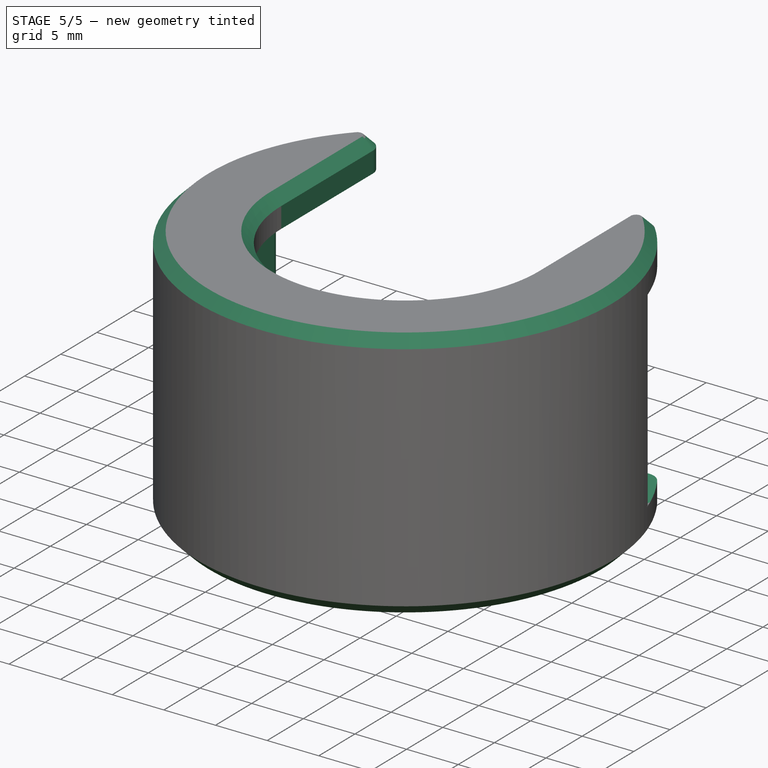
[diagram: stage 5 of 5 — iso view after this stage's code; geometry added in this stage tinted green]
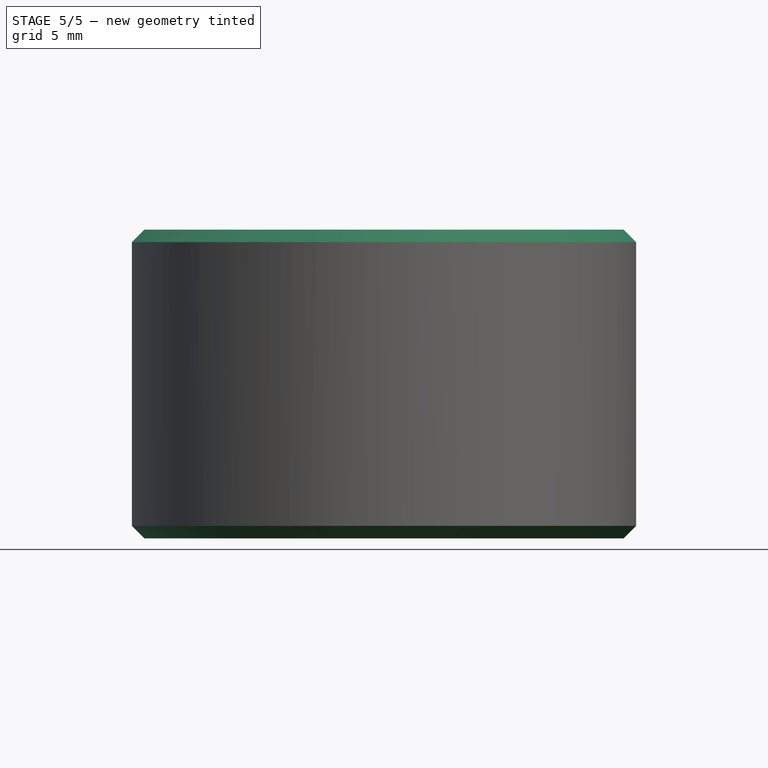
[diagram: stage 5 of 5 — front view after this stage's code; geometry added in this stage tinted green]
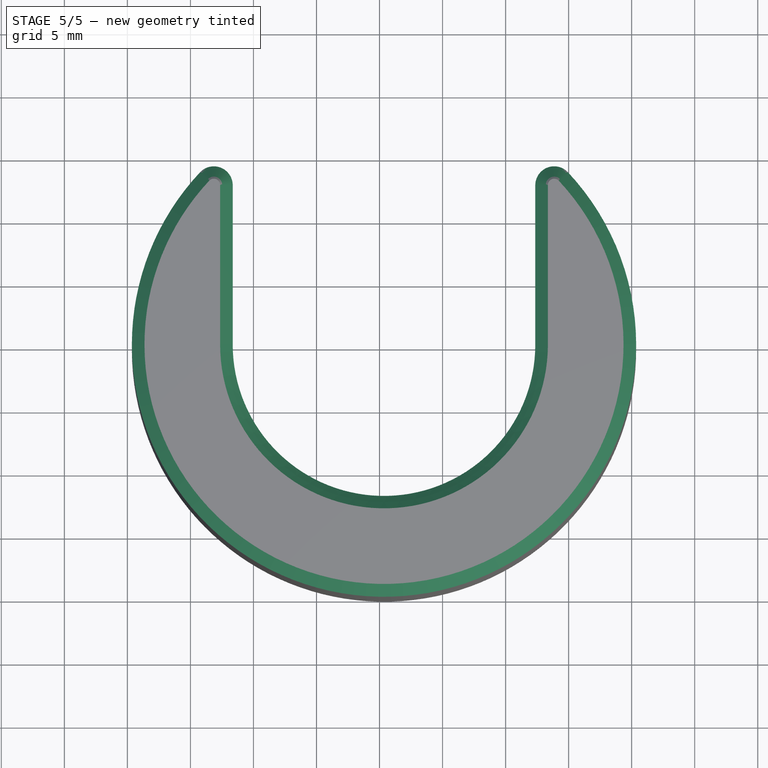
[diagram: stage 5 of 5 — top view after this stage's code; geometry added in this stage tinted green]
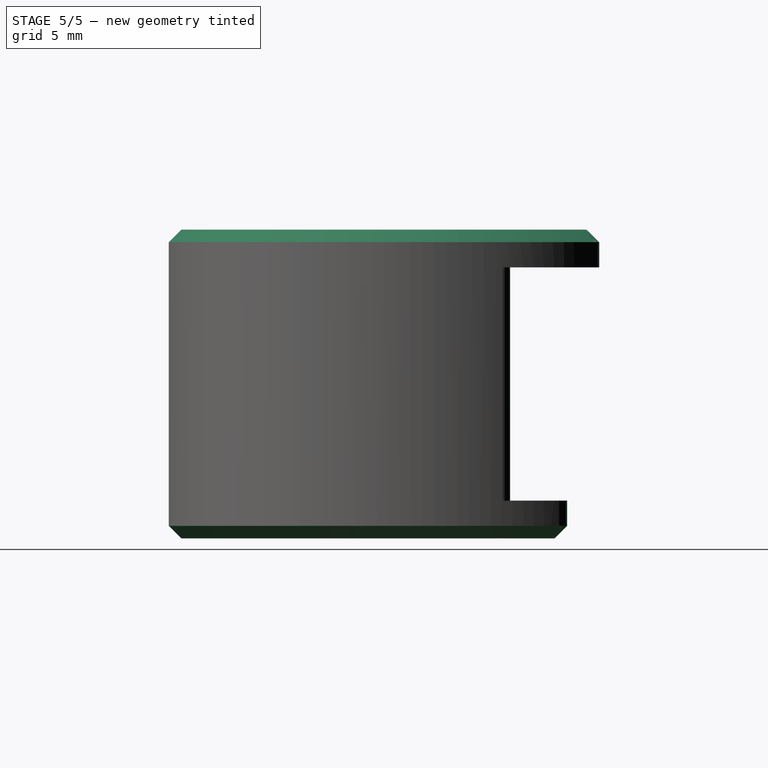
[diagram: stage 5 of 5 — right view after this stage's code; geometry added in this stage tinted green]
FEATURE [Sketcher::SketchObject] Sketch014
  ArcFitTolerance = 1e-06
  AttachmentSupport = -> [XZ_Plane005]
  ExternalGeometry = -> [Revolution003,DatumLine002]
  ExternalTypes = [0]
  FullyConstrained = true
  MakeInternals = false
  MapMode = 5
  Placement = pos=(0,0,0) rot=(1,0,0;1.5708rad)
  sketch-geometry (12):
    g0: LineSegment StartX=-76.645 StartY=-47.35 StartZ=0 EndX=-52.645 EndY=-47.35 EndZ=0
    g1: LineSegment StartX=-52.645 StartY=-47.35 StartZ=0 EndX=-52.645 EndY=-50.35 EndZ=0
    g2: LineSegment StartX=-52.645 StartY=-50.35 StartZ=0 EndX=-47.645 EndY=-50.35 EndZ=0
    g3: LineSegment StartX=-47.645 StartY=-50.35 StartZ=0 EndX=-47.645 EndY=-68.85 EndZ=0
    g4: LineSegment StartX=-47.645 StartY=-68.85 StartZ=0 EndX=-50.645 EndY=-68.85 EndZ=0
    g5: LineSegment StartX=-50.645 StartY=-68.85 StartZ=0 EndX=-50.645 EndY=-71.85 EndZ=0
    g6: LineSegment StartX=-50.645 StartY=-71.85 StartZ=0 EndX=-78.645 EndY=-71.85 EndZ=0
    g7: LineSegment StartX=-78.645 StartY=-71.85 StartZ=0 EndX=-78.645 EndY=-68.85 EndZ=0
    g8: LineSegment StartX=-78.645 StartY=-68.85 StartZ=0 EndX=-81.645 EndY=-68.85 EndZ=0
    g9: LineSegment StartX=-81.645 StartY=-68.85 StartZ=0 EndX=-81.645 EndY=-50.35 EndZ=0
    g10: LineSegment StartX=-81.645 StartY=-50.35 StartZ=0 EndX=-76.645 EndY=-50.35 EndZ=0
    g11: LineSegment StartX=-76.645 StartY=-50.35 StartZ=0 EndX=-76.645 EndY=-47.35 EndZ=0
  constraints (26):
    c: Coincident(g-3,g0)
    c: Coincident(g0,g1)
    c: Coincident(g1,g2)
    c: Horizontal(g2)
    c: Coincident(g2,g3)
    c: Vertical(g3)
    c: Coincident(g3,g4)
    c: Coincident(g4,g5)
    c: Coincident(g5,g6)
    c: Coincident(g6,g-5)
    c: Coincident(g6,g7)
    c: Coincident(g7,g-5)
    c: Coincident(g7,g8)
    c: Coincident(g8,g-4)
    c: Coincident(g8,g9)
    c: Coincident(g9,g-4)
    c: Coincident(g9,g10)
    c: Coincident(g10,g-3)
    c: Coincident(g10,g11)
    c: Coincident(g11,g0)
    c: Symmetric(g0,g0,g-6)
    c: Symmetric(g2,g9,g-6)
    c: Vertical(g1)
    c: Horizontal(g4)
    c: Symmetric(g6,g5,g-6)
    c: Symmetric(g4,g7,g-6)
FEATURE [PartDesign::Pocket] Pocket003
  BaseFeature = -> Revolution003
  Direction = (0,1,-2e-16)
  Length = 5
  Length2 = 5
  Placement = pos=(0,0,0) rot=(1,0,0;1.5708rad)
  Profile = -> Sketch014
  ReferenceAxis = -> Sketch014 [N_Axis]
  Refine = true
  SideType = 0
  Suppressed = false
  Type = 1
  Type2 = 0
FEATURE [PartDesign::Fillet] Fillet
  Base = -> Pocket003 [Edge12,Edge6,Edge31,Edge38]
  BaseFeature = -> Pocket003
  Placement = pos=(0,0,0) rot=(1,0,0;1.5708rad)
  Radius = 1.5
  Refine = true
  SupportTransform = false
  Suppressed = false
  UseAllEdges = false
FEATURE [PartDesign::Fillet] Fillet001
  Base = -> Fillet [Edge23,Edge28]
  BaseFeature = -> Fillet
  Placement = pos=(0,0,0) rot=(1,0,0;1.5708rad)
  Radius = 1
  Refine = true
  SupportTransform = false
  Suppressed = false
  UseAllEdges = false
FEATURE [PartDesign::Chamfer] Chamfer001
  Angle = 45
  Base = -> Fillet001 [Edge26,Edge30]
  BaseFeature = -> Fillet001
  ChamferType = 0
  FlipDirection = false
  Placement = pos=(0,0,0) rot=(1,0,0;1.5708rad)
  Refine = true
  Size = 1
  Size2 = 1
  SupportTransform = false
  Suppressed = false
  UseAllEdges = false
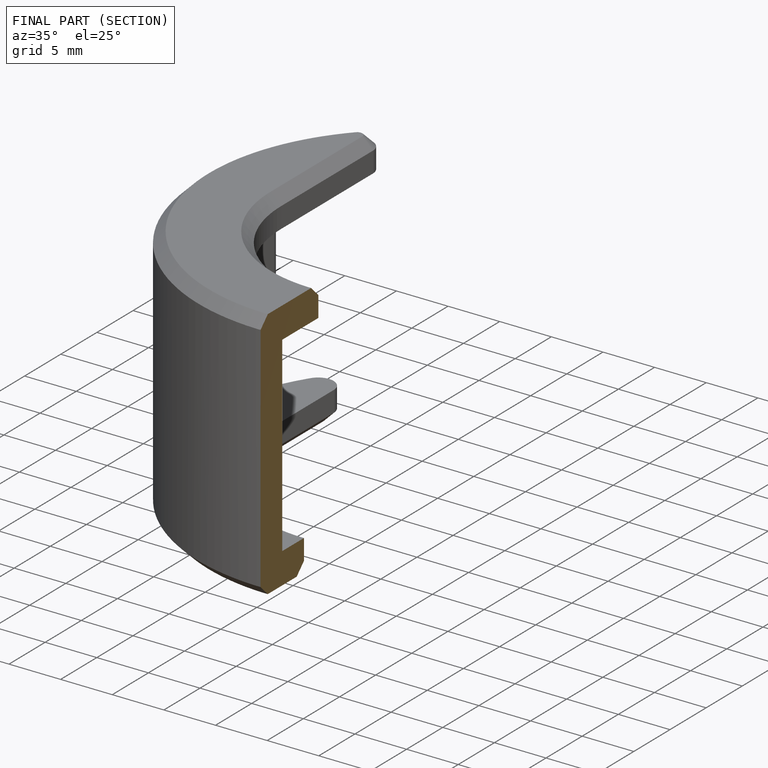
[diagram: finished part — half-section view (interior)]
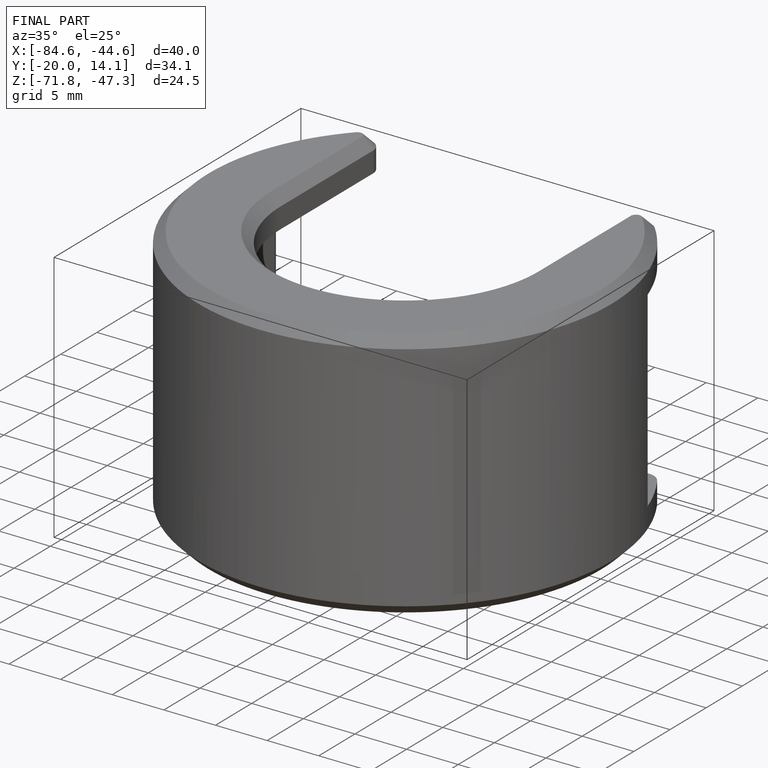
[diagram: finished part — iso view with bounding-box wireframe]
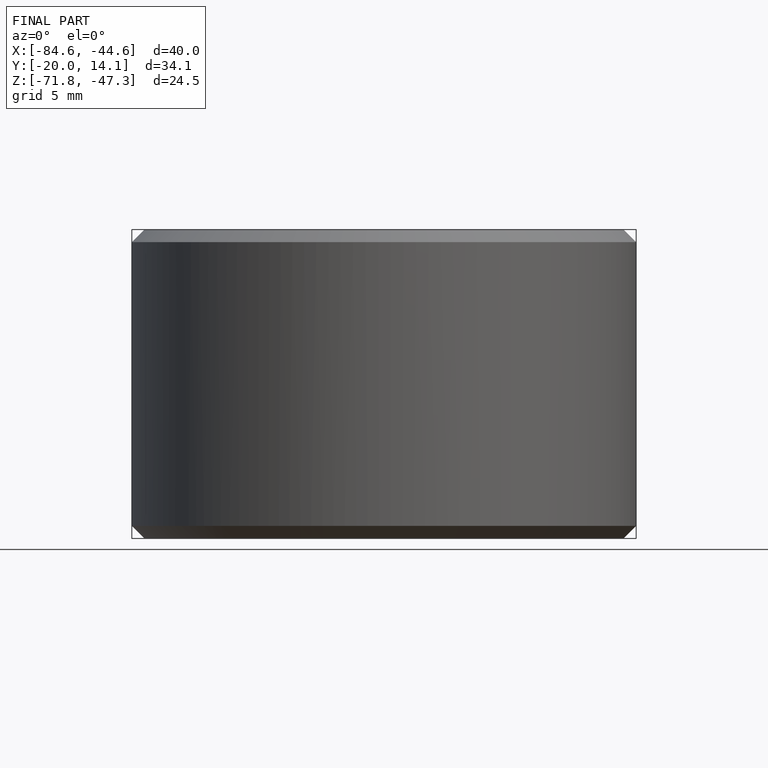
[diagram: finished part — front view with bounding-box wireframe]
